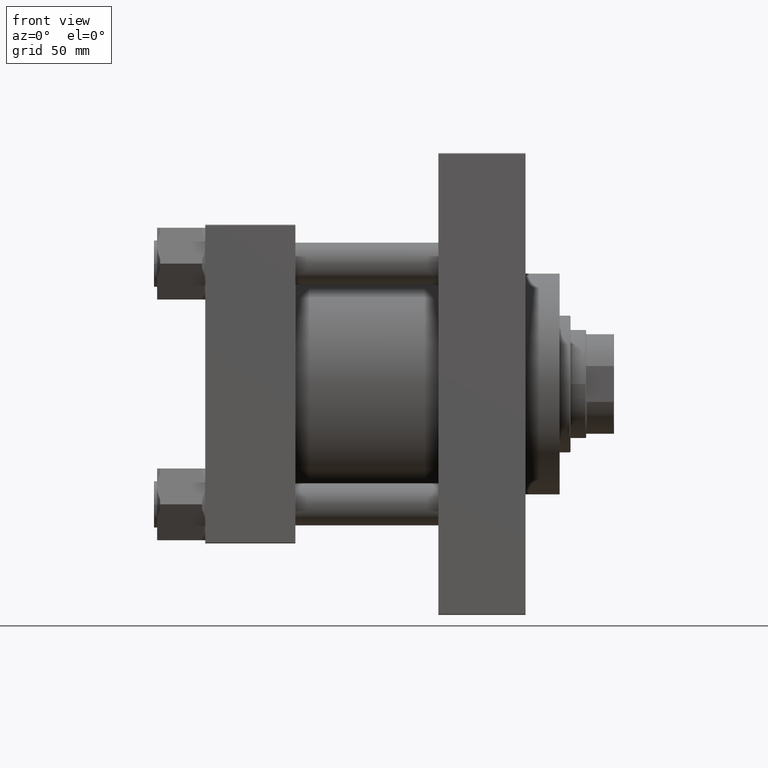
[diagram: clean part render]
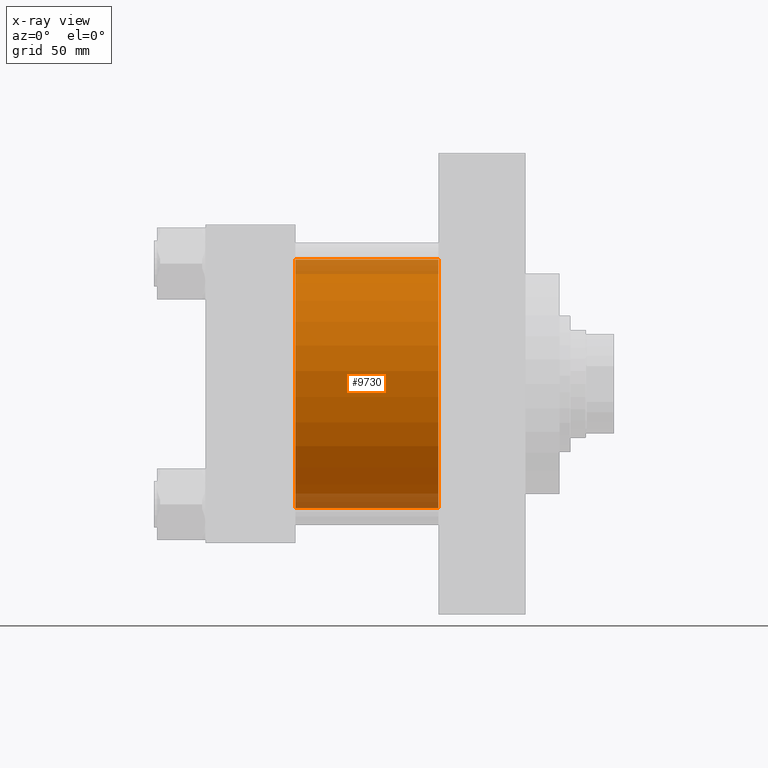
[diagram: x-ray — body ghosted, one internal face saturated and labeled with its STEP entity id]
A machine part, front view, then the same camera in x-ray: the body is ghosted and one INTERNAL B-rep face — a face not visible from any outside direction — is saturated and labeled: STEP entity #9730.
In plain terms, the highlighted cylindrical surface (partial cylindrical patch) has radius 80 mm, axis along (-1, -0, -0).
Its self-contained STEP definition (entity closure, byte-faithful):
#63 = ORIENTED_EDGE ( 'NONE', *, *, #21727, .T. ) ;
#2247 = VERTEX_POINT ( 'NONE', #3266 ) ;
#2747 = DIRECTION ( 'NONE',  ( 0.000000000000000000, 0.000000000000000000, -1.000000000000000000 ) ) ;
#3266 = CARTESIAN_POINT ( 'NONE',  ( 58.00000000000000000, 7.195089179213615410E-15, -80.00000000000000000 ) ) ;
#7608 = DIRECTION ( 'NONE',  ( 0.000000000000000000, 0.000000000000000000, 1.000000000000000000 ) ) ;
#7784 = CARTESIAN_POINT ( 'NONE',  ( 150.0000000000000000, -2.602085213965210642E-15, 0.000000000000000000 ) ) ;
#8303 = CIRCLE ( 'NONE', #28442, 80.00000000000000000 ) ;
#9326 = CIRCLE ( 'NONE', #30227, 80.00000000000000000 ) ;
#9730 = ADVANCED_FACE ( 'NONE', ( #23211 ), #26245, .F. ) ;
#12308 = CARTESIAN_POINT ( 'NONE',  ( 150.0000000000000000, 7.195089179213615410E-15, -80.00000000000000000 ) ) ;
#14326 = DIRECTION ( 'NONE',  ( -1.000000000000000000, -0.000000000000000000, -0.000000000000000000 ) ) ;
#15237 = VECTOR ( 'NONE', #14326, 1000.000000000000000 ) ;
#17721 = CARTESIAN_POINT ( 'NONE',  ( 150.0000000000000000, -2.602085213965210642E-15, 80.00000000000000000 ) ) ;
#18106 = CARTESIAN_POINT ( 'NONE',  ( 150.0000000000000000, 7.195089179213615410E-15, -80.00000000000000000 ) ) ;
#21727 = EDGE_CURVE ( 'NONE', #24708, #2247, #25181, .T. ) ;
#23211 = FACE_OUTER_BOUND ( 'NONE', #31796, .T. ) ;
#24708 = VERTEX_POINT ( 'NONE', #12308 ) ;
#25181 = LINE ( 'NONE', #18106, #15237 ) ;
#26011 = EDGE_CURVE ( 'NONE', #30070, #28773, #37694, .T. ) ;
#26245 = CYLINDRICAL_SURFACE ( 'NONE', #47051, 80.00000000000000000 ) ;
#26421 = DIRECTION ( 'NONE',  ( 1.000000000000000000, 0.000000000000000000, 0.000000000000000000 ) ) ;
#26489 = CARTESIAN_POINT ( 'NONE',  ( 150.0000000000000000, -2.602085213965210642E-15, 0.000000000000000000 ) ) ;
#28442 = AXIS2_PLACEMENT_3D ( 'NONE', #7784, #26421, #38754 ) ;
#28773 = VERTEX_POINT ( 'NONE', #47769 ) ;
#30070 = VERTEX_POINT ( 'NONE', #17721 ) ;
#30227 = AXIS2_PLACEMENT_3D ( 'NONE', #45303, #45062, #2747 ) ;
#30655 = VECTOR ( 'NONE', #34412, 1000.000000000000000 ) ;
#31796 = EDGE_LOOP ( 'NONE', ( #33806, #63, #38048, #35833 ) ) ;
#33806 = ORIENTED_EDGE ( 'NONE', *, *, #34028, .T. ) ;
#34028 = EDGE_CURVE ( 'NONE', #30070, #24708, #8303, .T. ) ;
#34304 = DIRECTION ( 'NONE',  ( -1.000000000000000000, -0.000000000000000000, -0.000000000000000000 ) ) ;
#34412 = DIRECTION ( 'NONE',  ( -1.000000000000000000, -0.000000000000000000, -0.000000000000000000 ) ) ;
#35833 = ORIENTED_EDGE ( 'NONE', *, *, #26011, .F. ) ;
#37694 = LINE ( 'NONE', #45004, #30655 ) ;
#38048 = ORIENTED_EDGE ( 'NONE', *, *, #45459, .F. ) ;
#38754 = DIRECTION ( 'NONE',  ( 0.000000000000000000, 0.000000000000000000, -1.000000000000000000 ) ) ;
#45004 = CARTESIAN_POINT ( 'NONE',  ( 150.0000000000000000, -2.602085213965210642E-15, 80.00000000000000000 ) ) ;
#45062 = DIRECTION ( 'NONE',  ( 1.000000000000000000, 0.000000000000000000, 0.000000000000000000 ) ) ;
#45303 = CARTESIAN_POINT ( 'NONE',  ( 58.00000000000000000, -2.602085213965210642E-15, 0.000000000000000000 ) ) ;
#45459 = EDGE_CURVE ( 'NONE', #28773, #2247, #9326, .T. ) ;
#47051 = AXIS2_PLACEMENT_3D ( 'NONE', #26489, #34304, #7608 ) ;
#47769 = CARTESIAN_POINT ( 'NONE',  ( 58.00000000000000000, -2.602085213965210642E-15, 80.00000000000000000 ) ) ;